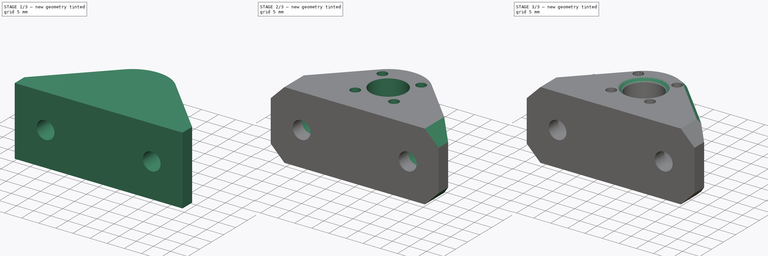
[diagram: build sequence overview — one tinted view per stage of 3, left to right]
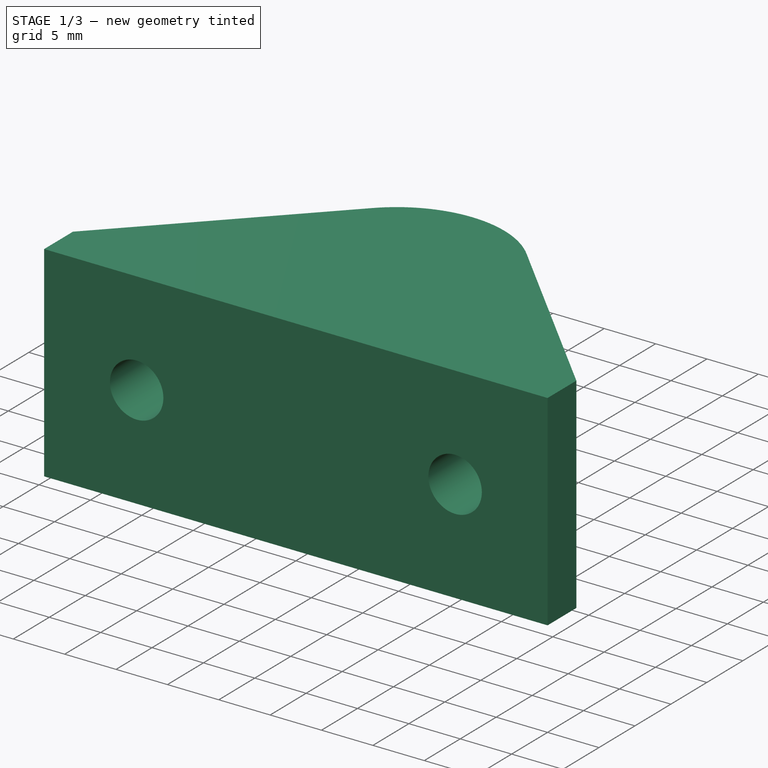
[diagram: stage 1 of 3 — iso view after this stage's code; geometry added in this stage tinted green]
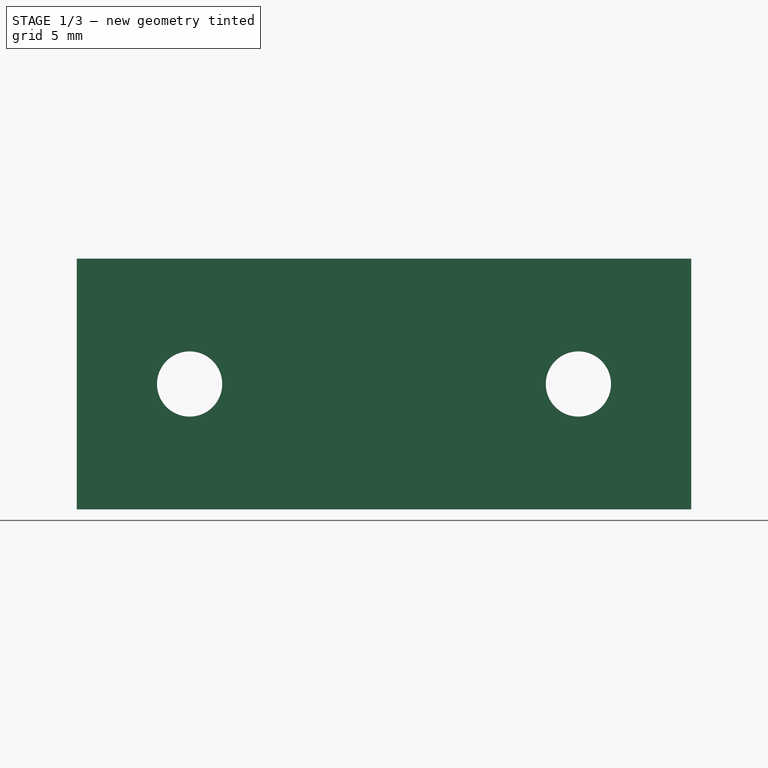
[diagram: stage 1 of 3 — front view after this stage's code; geometry added in this stage tinted green]
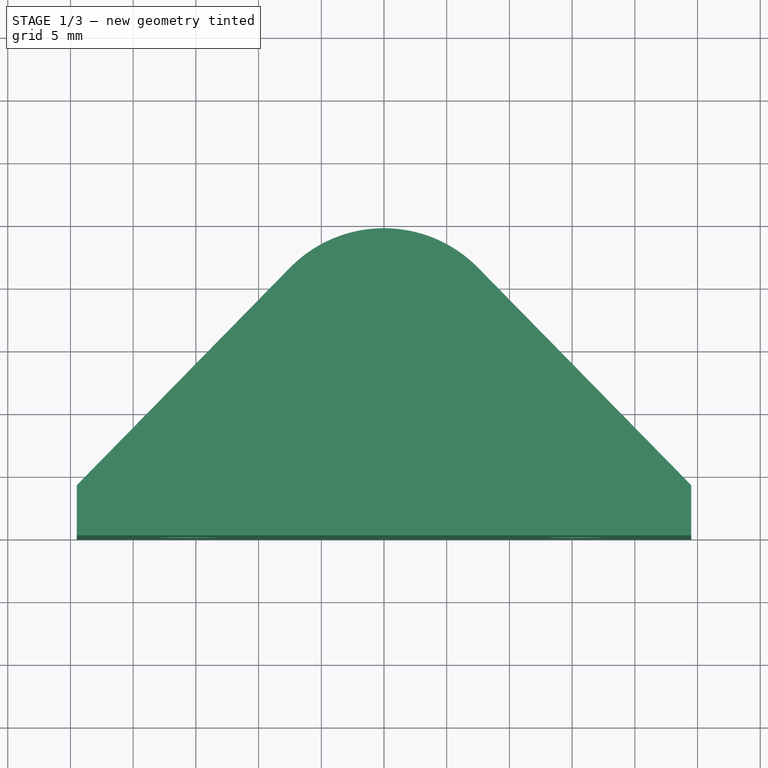
[diagram: stage 1 of 3 — top view after this stage's code; geometry added in this stage tinted green]
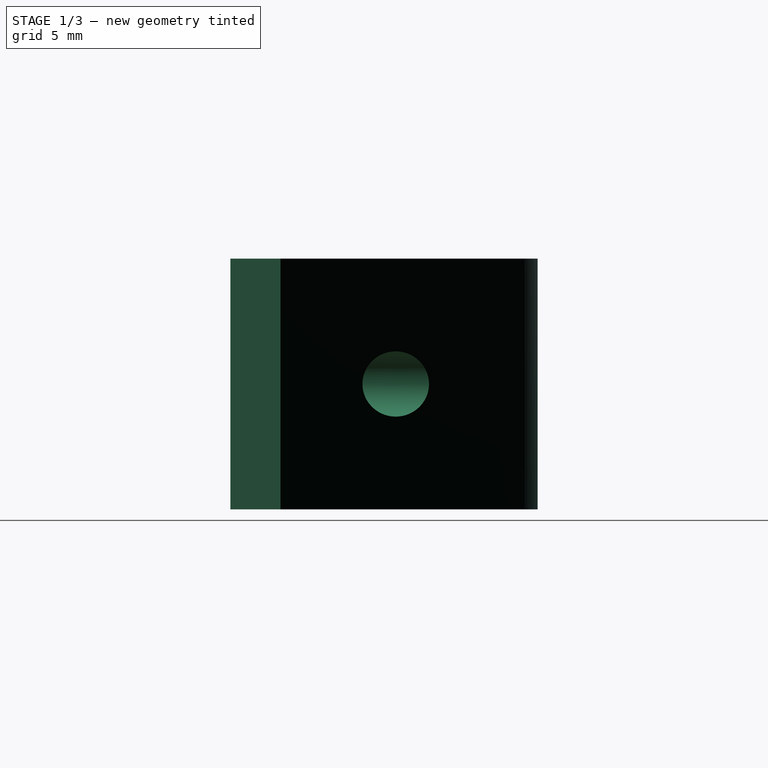
[diagram: stage 1 of 3 — right view after this stage's code; geometry added in this stage tinted green]
FCSTD DOCUMENT  (FreeCAD 0.19R24267 +99 (Git))
Label: lead_screw_nut_mount
License: All rights reserved
LicenseURL: http://en.wikipedia.org/wiki/All_rights_reserved
objects: Sketcher::SketchObject×4, PartDesign::Pocket×3, PartDesign::Chamfer×3, PartDesign::Pad×1, PartDesign::Plane×1, PartDesign::Body×1
note: 20 computed .brp shape members not serialized (recipe doc carries the construction recipe); baked Part::Feature solids carry a one-line shape summary decoded from their .brp

FEATURE [Sketcher::SketchObject] Sketch
  FullyConstrained = true
  MapMode = 5
  Support = -> [XY_Plane]
  sketch-geometry (14):
    g0: LineSegment StartX=-24.5 StartY=4 StartZ=0 EndX=-24.5 EndY=0 EndZ=0
    g1: LineSegment StartX=-24.5 StartY=0 StartZ=0 EndX=24.5 EndY=0 EndZ=0
    g2: LineSegment StartX=24.5 StartY=0 StartZ=0 EndX=24.5 EndY=4 EndZ=0
    g3: Circle CenterX=0 CenterY=14 CenterZ=0 NormalX=0 NormalY=0 NormalZ=1 AngleXU=0 Radius=5.2
    g4: Circle CenterX=0 CenterY=14 CenterZ=0 NormalX=0 NormalY=0 NormalZ=1 AngleXU=0 Radius=8
    g5: Circle CenterX=0 CenterY=14 CenterZ=0 NormalX=0 NormalY=0 NormalZ=1 AngleXU=0 Radius=10.5
    g6: Circle CenterX=8 CenterY=14 CenterZ=0 NormalX=0 NormalY=0 NormalZ=1 AngleXU=0 Radius=1.5
    g7: LineSegment StartX=0 StartY=14 StartZ=0 EndX=10.5 EndY=14 EndZ=0
    g8: GeomPoint X=6.5 Y=14 Z=0
    g9: LineSegment StartX=-10.5 StartY=14 StartZ=0 EndX=-10.5 EndY=0 EndZ=0
    g10: LineSegment StartX=10.5 StartY=14 StartZ=0 EndX=10.5 EndY=0 EndZ=0
    g11: LineSegment StartX=-24.5 StartY=4 StartZ=0 EndX=-7.49956 EndY=21.3489 EndZ=0
    g12: LineSegment StartX=7.49956 StartY=21.3489 StartZ=0 EndX=24.5 EndY=4 EndZ=0
    g13: ArcOfCircle CenterX=0 CenterY=14 CenterZ=0 NormalX=0 NormalY=0 NormalZ=1 AngleXU=0 Radius=10.5 StartAngle=0.775253 EndAngle=2.36634
  constraints (37):
    c: PointOnObject(g0,g-1)
    c: Vertical(g0)
    c: Coincident(g1,g0)
    c: Coincident(g2,g1)
    c: Vertical(g2)
    c: DistanceY(g0,g0) = 4
    c: PointOnObject(g3,g-2)
    c: Coincident(g4,g3)
    c: Coincident(g5,g3)
    c: Diameter(g3) = 10.4
    c: Diameter(g4) = 16
    c: PointOnObject(g6,g4)
    c: Diameter(g6) = 3
    c: Coincident(g7,g3)
    c: PointOnObject(g6,g7)
    c: PointOnObject(g8,g6)
    c: PointOnObject(g8,g7)
    c: Distance(g8,g7) = 4
    c: PointOnObject(g7,g5)
    c: DistanceY(g-1,g3) = 14
    c: PointOnObject(g9,g5)
    c: PointOnObject(g9,g1)
    c: Vertical(g9)
    c: PointOnObject(g10,g1)
    c: Vertical(g10)
    c: Tangent(g5,g10)
    c: DistanceX(g0,g9) = 14
    c: Symmetric(g0,g1,g-1)
    c: Equal(g0,g2)
    c: Coincident(g11,g0)
    c: Coincident(g12,g2)
    c: Tangent(g13,g12) = 1.5708
    c: PointOnObject(g12,g5)
    c: Coincident(g13,g3)
    c: Tangent(g13,g11) = 1.5708
    c: Coincident(g7,g10)
    c: Tangent(g9,g5)
FEATURE [PartDesign::Pad] Pad
  Direction = (1,1,1)
  Length = 20
  Length2 = 100
  Profile = -> Sketch
  Type = 0
FEATURE [Sketcher::SketchObject] Sketch001
  FullyConstrained = true
  MapMode = 5
  Placement = pos=(0,0,0) rot=(1,0,0;1.5708rad)
  Support = -> [XZ_Plane]
  sketch-geometry (2):
    g0: Circle CenterX=-15.5 CenterY=10 CenterZ=0 NormalX=0 NormalY=0 NormalZ=1 AngleXU=0 Radius=2.6
    g1: Circle CenterX=15.5 CenterY=10 CenterZ=0 NormalX=0 NormalY=0 NormalZ=1 AngleXU=0 Radius=2.6
  constraints (5):
    c: DistanceY(g-1,g0) = 10
    c: Diameter(g0) = 5.2
    c: Equal(g0,g1)
    c: Symmetric(g0,g1,g-2)
    c: DistanceX(g0,g-1) = 15.5
FEATURE [PartDesign::Pocket] Pocket
  BaseFeature = -> Pad
  Length = 5
  Length2 = 100
  Profile = -> Sketch001
  Type = 1
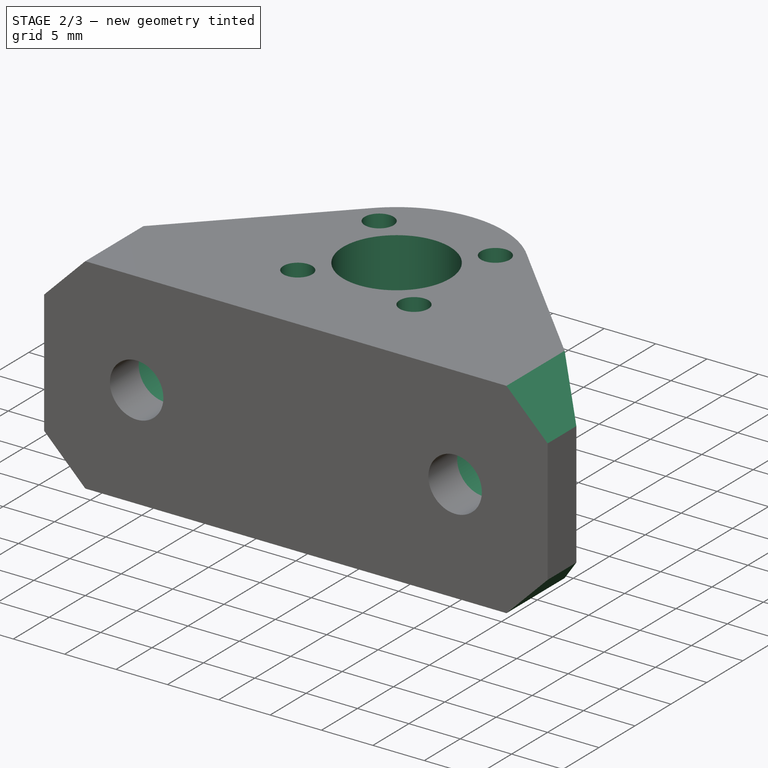
[diagram: stage 2 of 3 — iso view after this stage's code; geometry added in this stage tinted green]
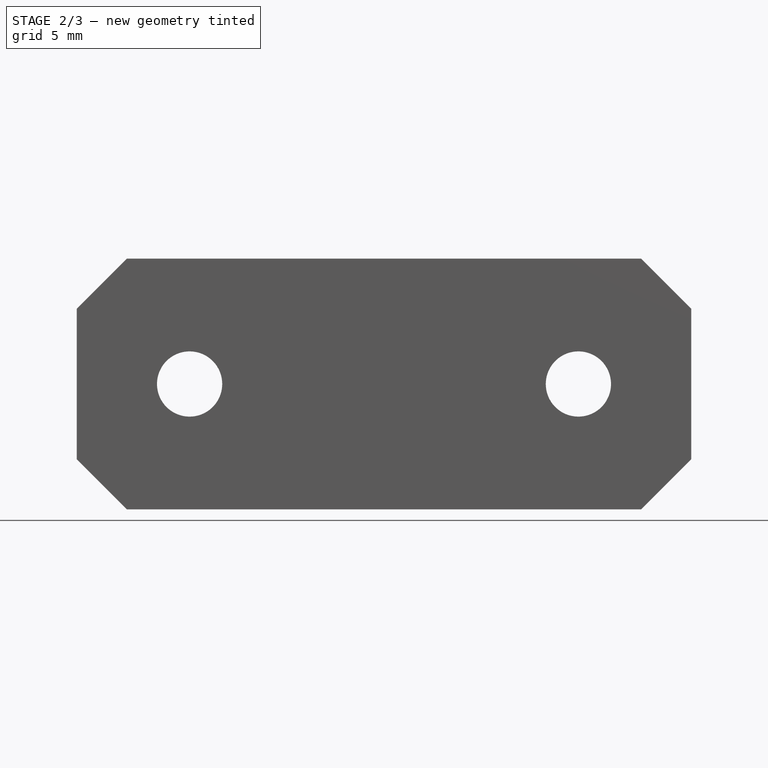
[diagram: stage 2 of 3 — front view after this stage's code; geometry added in this stage tinted green]
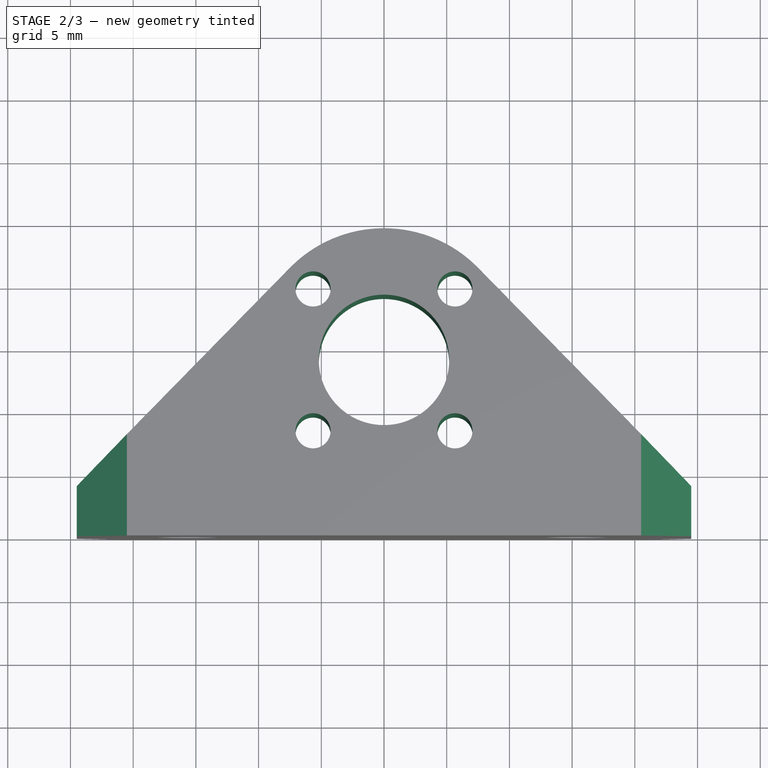
[diagram: stage 2 of 3 — top view after this stage's code; geometry added in this stage tinted green]
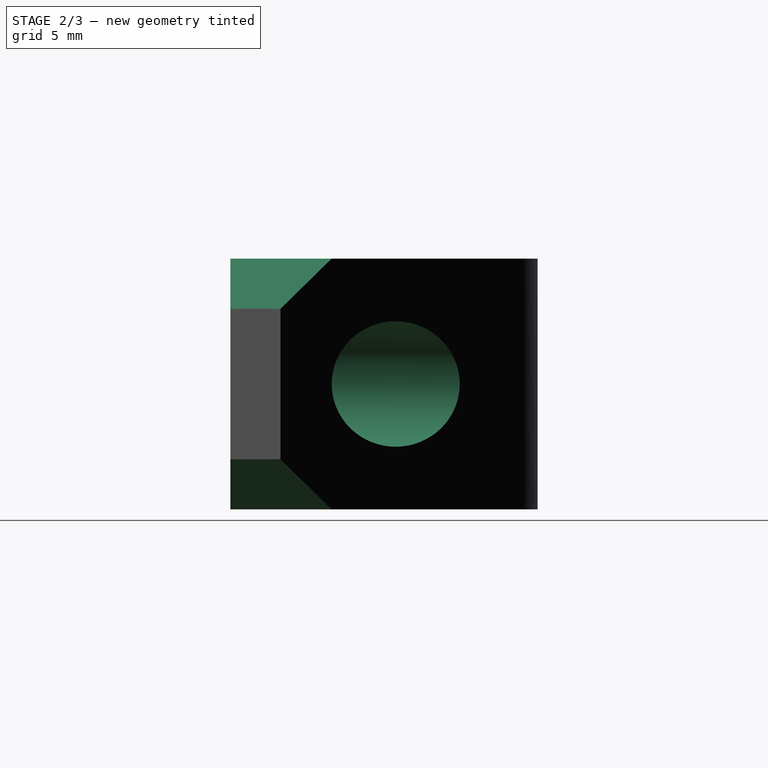
[diagram: stage 2 of 3 — right view after this stage's code; geometry added in this stage tinted green]
FEATURE [PartDesign::Plane] DatumPlane
  AttachmentOffset = pos=(0,0,-4) rot=(0,0,1;0rad)
  Length = 60
  MapMode = 5
  Placement = pos=(0,4,9e-16) rot=(1,0,0;1.5708rad)
  ResizeMode = 0
  Support = -> [XZ_Plane]
  Width = 60
FEATURE [Sketcher::SketchObject] Sketch002
  FullyConstrained = true
  MapMode = 5
  Placement = pos=(0,4,9e-16) rot=(1,0,0;1.5708rad)
  Support = -> [DatumPlane]
  sketch-geometry (2):
    g0: Circle CenterX=-15.5 CenterY=10 CenterZ=0 NormalX=0 NormalY=0 NormalZ=1 AngleXU=0 Radius=5
    g1: Circle CenterX=15.5 CenterY=10 CenterZ=0 NormalX=0 NormalY=0 NormalZ=1 AngleXU=0 Radius=5
  constraints (5):
    c: Diameter(g0) = 10
    c: Equal(g0,g1)
    c: Symmetric(g0,g1,g-2)
    c: DistanceY(g-1,g0) = 10
    c: DistanceX(g0,g-1) = 15.5
FEATURE [PartDesign::Pocket] Pocket001
  BaseFeature = -> Pocket
  Length = 5
  Length2 = 100
  Profile = -> Sketch002
  Type = 1
FEATURE [Sketcher::SketchObject] Sketch003
  FullyConstrained = true
  MapMode = 5
  Support = -> [XY_Plane]
  sketch-geometry (10):
    g0: Circle CenterX=0 CenterY=14 CenterZ=0 NormalX=0 NormalY=0 NormalZ=1 AngleXU=0 Radius=5.2
    g1: Circle CenterX=0 CenterY=14 CenterZ=0 NormalX=0 NormalY=0 NormalZ=1 AngleXU=0 Radius=8
    g2: Circle CenterX=-5.65685 CenterY=19.6569 CenterZ=0 NormalX=0 NormalY=0 NormalZ=1 AngleXU=0 Radius=1.4
    g3: Circle CenterX=5.65685 CenterY=19.6569 CenterZ=0 NormalX=0 NormalY=0 NormalZ=1 AngleXU=0 Radius=1.4
    g4: Circle CenterX=5.65685 CenterY=8.34315 CenterZ=0 NormalX=0 NormalY=0 NormalZ=1 AngleXU=0 Radius=1.4
    g5: Circle CenterX=-5.65685 CenterY=8.34315 CenterZ=0 NormalX=0 NormalY=0 NormalZ=1 AngleXU=0 Radius=1.4
    g6: LineSegment StartX=-5.65685 StartY=8.34315 StartZ=0 EndX=-5.65685 EndY=19.6569 EndZ=0
    g7: LineSegment StartX=-5.65685 StartY=19.6569 StartZ=0 EndX=5.65685 EndY=19.6569 EndZ=0
    g8: LineSegment StartX=5.65685 StartY=19.6569 StartZ=0 EndX=5.65685 EndY=8.34315 EndZ=0
    g9: LineSegment StartX=5.65685 StartY=8.34315 StartZ=0 EndX=-5.65685 EndY=8.34315 EndZ=0
  constraints (25):
    c: PointOnObject(g0,g-2)
    c: Diameter(g0) = 10.4
    c: DistanceY(g-1,g0) = 14
    c: Coincident(g1,g0)
    c: Diameter(g1) = 16
    c: PointOnObject(g3,g1)
    c: PointOnObject(g4,g1)
    c: PointOnObject(g5,g1)
    c: Diameter(g5) = 2.8
    c: Equal(g5,g2)
    c: Equal(g2,g3)
    c: Equal(g3,g4)
    c: Coincident(g6,g5)
    c: Coincident(g6,g2)
    c: Coincident(g7,g2)
    c: Coincident(g7,g3)
    c: Coincident(g8,g3)
    c: Coincident(g8,g4)
    c: Coincident(g9,g4)
    c: Coincident(g9,g5)
    c: PointOnObject(g2,g1)
    c: Perpendicular(g9,g6)
    c: Equal(g9,g6)
    c: Equal(g6,g7)
    c: Horizontal(g9)
FEATURE [PartDesign::Pocket] Pocket002
  BaseFeature = -> Pocket001
  Length = 5
  Length2 = 100
  Profile = -> Sketch003
  Reversed = true
  Type = 1
FEATURE [PartDesign::Chamfer] Chamfer
  Angle = 45
  Base = -> Pocket002 [Edge23,Edge15,Edge4,Edge3]
  BaseFeature = -> Pocket002
  ChamferType = 0
  FlipDirection = false
  Size = 4
  Size2 = 1
  SupportTransform = false
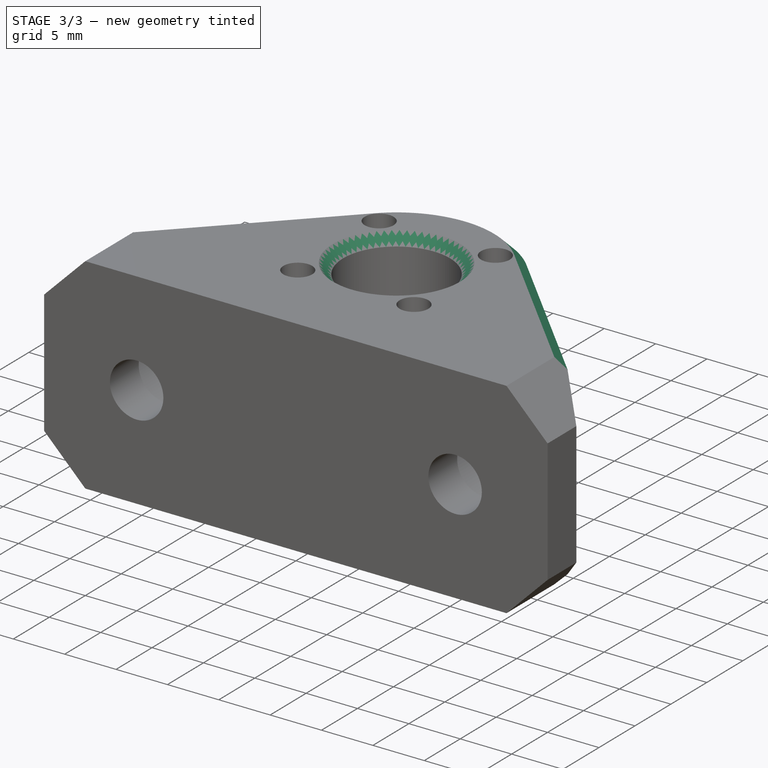
[diagram: stage 3 of 3 — iso view after this stage's code; geometry added in this stage tinted green]
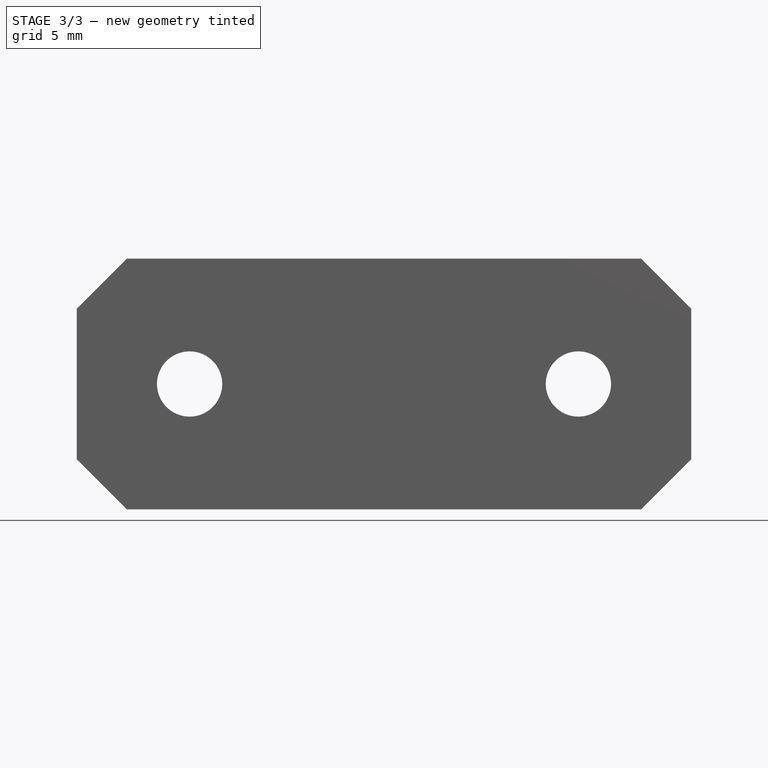
[diagram: stage 3 of 3 — front view after this stage's code; geometry added in this stage tinted green]
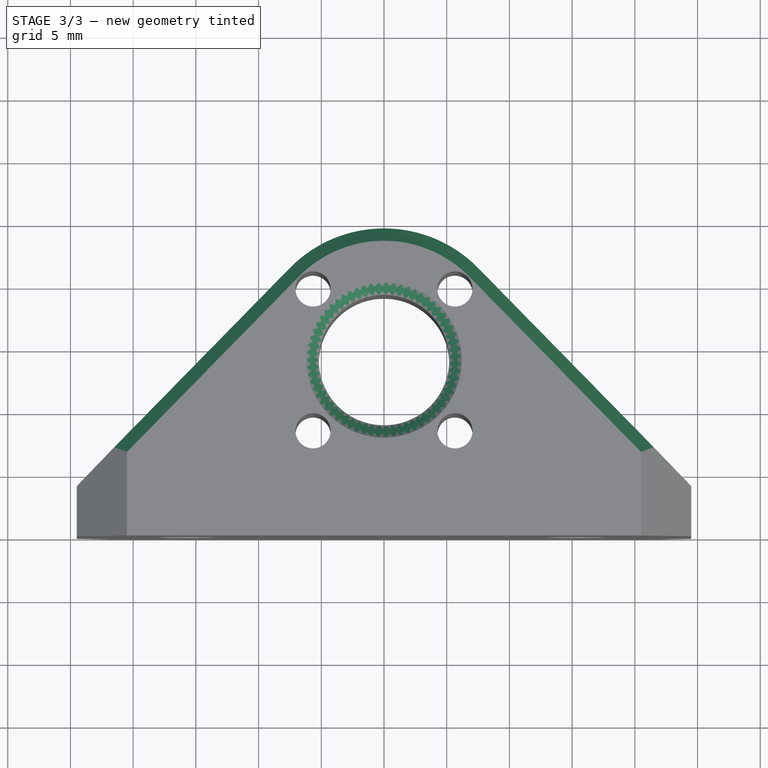
[diagram: stage 3 of 3 — top view after this stage's code; geometry added in this stage tinted green]
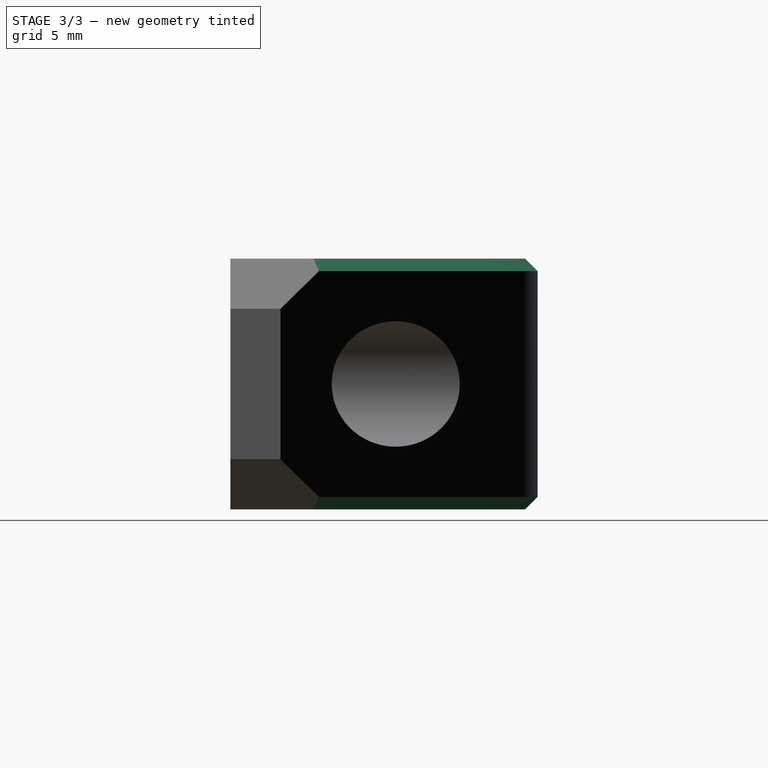
[diagram: stage 3 of 3 — right view after this stage's code; geometry added in this stage tinted green]
FEATURE [PartDesign::Chamfer] Chamfer001
  Angle = 45
  Base = -> Chamfer [Edge34,Edge26]
  BaseFeature = -> Chamfer
  ChamferType = 0
  FlipDirection = false
  Size = 1
  Size2 = 1
  SupportTransform = false
FEATURE [PartDesign::Chamfer] Chamfer002
  Angle = 45
  Base = -> Chamfer001 [Edge34,Edge23,Edge17,Edge2,Edge4,Edge6]
  BaseFeature = -> Chamfer001
  ChamferType = 0
  FlipDirection = false
  Size = 1
  Size2 = 1
  SupportTransform = false
FEATURE [PartDesign::Body] Body
  Group = -> [Sketch,Pad,Sketch001,Pocket,DatumPlane,Sketch002,Pocket001,Sketch003,Pocket002,Chamfer,Chamfer001,Chamfer002]
  Origin = -> Origin
  Tip = -> Chamfer002
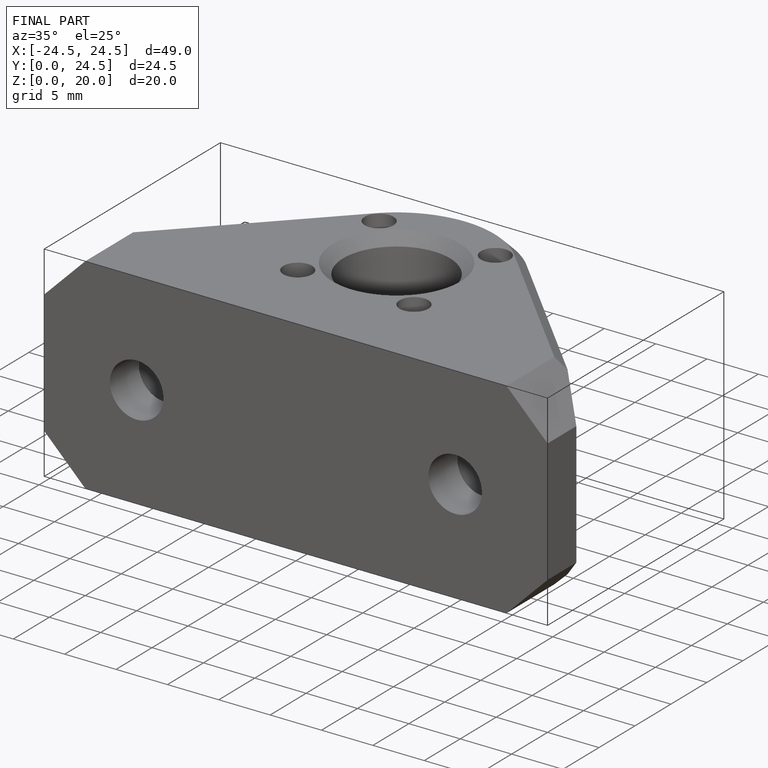
[diagram: finished part — iso view with bounding-box wireframe]
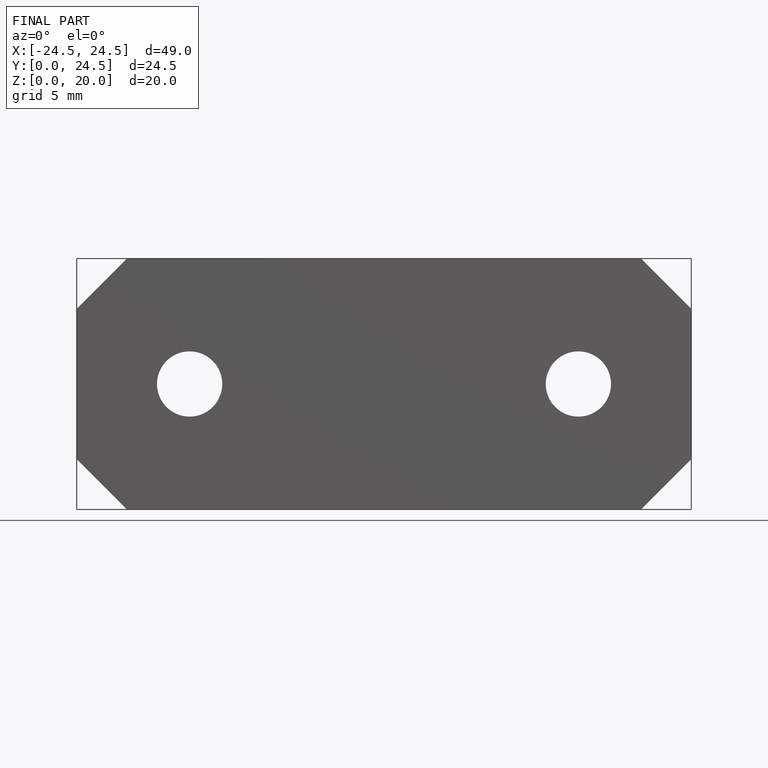
[diagram: finished part — front view with bounding-box wireframe]
